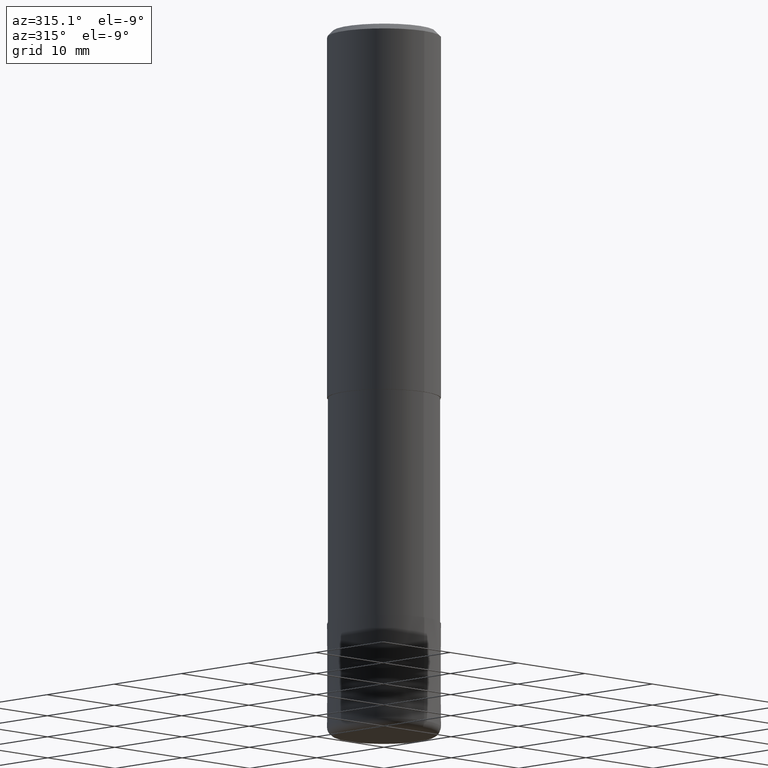
[diagram: clean part render]
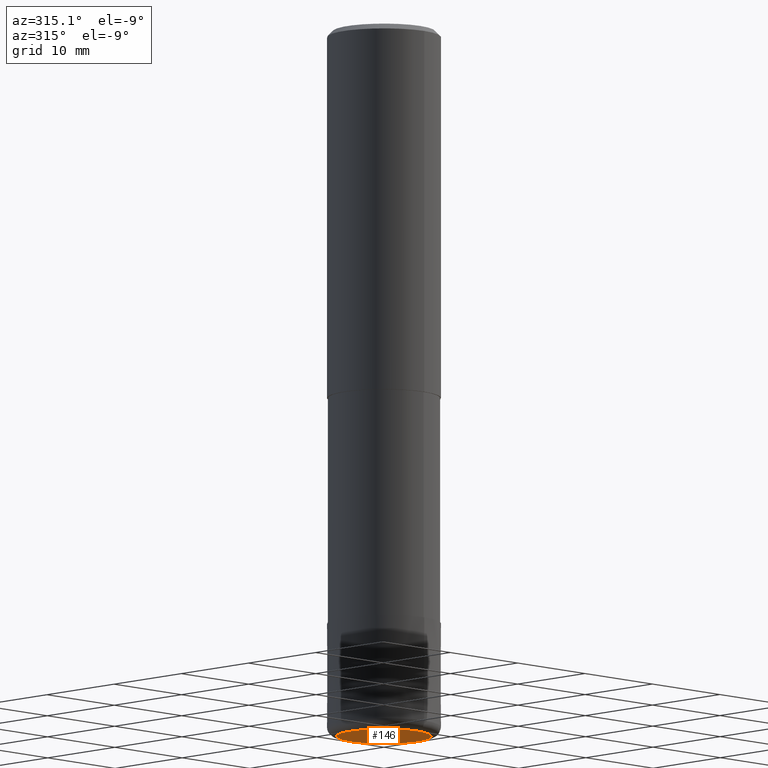
[diagram: same view with one face highlighted and labeled with its STEP entity id]
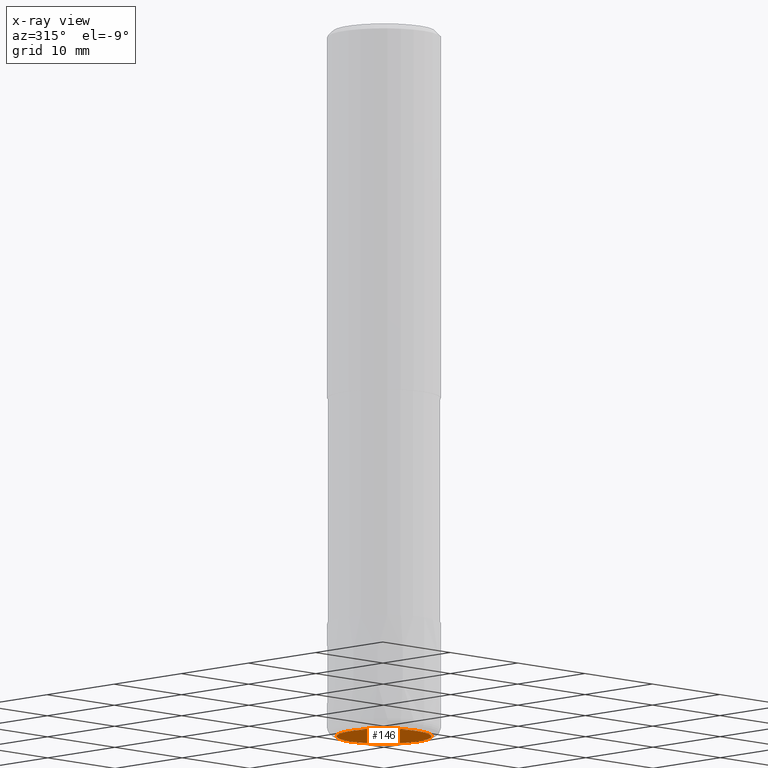
[diagram: x-ray of the same camera — body ghosted, the highlighted face saturated]
A machine part, auxiliary view. The second image highlights one B-rep face of the part: STEP entity #146.
The next image is the same camera in x-ray: the body ghosted, the highlighted face saturated — about 0% of this face is hidden behind the body in this view.
In plain terms, the highlighted planar face has unit normal (0, 0, -1).
Its self-contained STEP definition (entity closure, byte-faithful):
#102=EDGE_CURVE('',#114,#110,#240,.T.);
#110=VERTEX_POINT('',#250);
#114=VERTEX_POINT('',#254);
#146=ADVANCED_FACE('',(#293),#294,.T.);
#188=EDGE_CURVE('',#110,#114,#341,.T.);
#240=CIRCLE('',#389,5.0);
#250=CARTESIAN_POINT('',(6.12303176911189E-016,-5.0,-75.0));
#254=CARTESIAN_POINT('',(0.0,5.0,-75.0));
#293=FACE_OUTER_BOUND('',#449,.T.);
#294=PLANE('',#450);
#341=CIRCLE('',#507,5.0);
#389=AXIS2_PLACEMENT_3D('',#550,#551,#552);
#449=EDGE_LOOP('',(#636,#637));
#450=AXIS2_PLACEMENT_3D('',#638,#639,#640);
#507=AXIS2_PLACEMENT_3D('',#695,#696,#697);
#550=CARTESIAN_POINT('',(0.0,0.0,-75.0));
#551=DIRECTION('',(0.0,0.0,-1.0));
#552=DIRECTION('',(0.0,1.0,0.0));
#636=ORIENTED_EDGE('',*,*,#102,.T.);
#637=ORIENTED_EDGE('',*,*,#188,.T.);
#638=CARTESIAN_POINT('',(0.0,2.5,-75.0));
#639=DIRECTION('',(0.0,0.0,-1.0));
#640=DIRECTION('',(0.0,1.0,0.0));
#695=CARTESIAN_POINT('',(0.0,0.0,-75.0));
#696=DIRECTION('',(0.0,0.0,-1.0));
#697=DIRECTION('',(0.0,1.0,0.0));